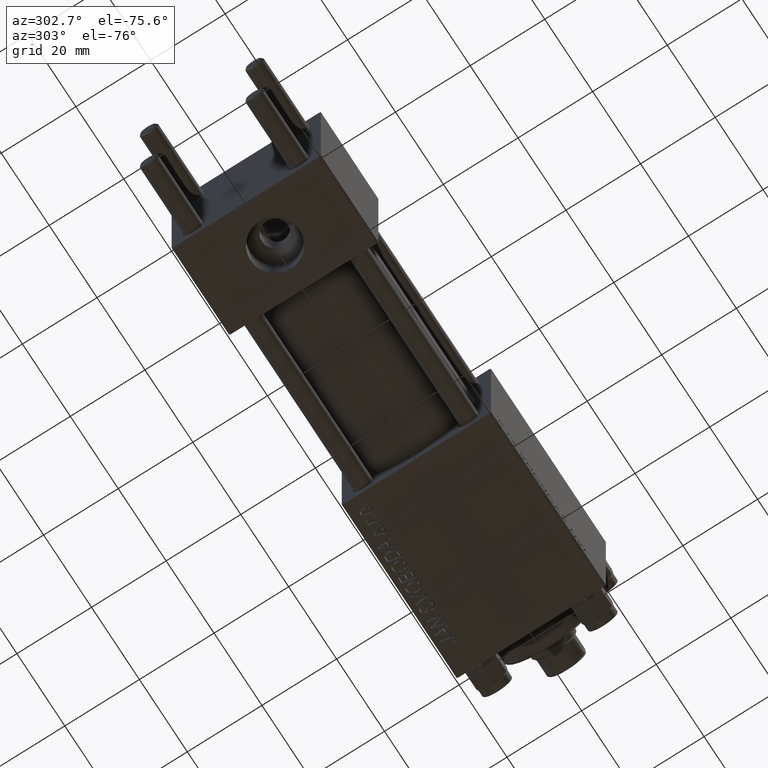
[diagram: clean part render]
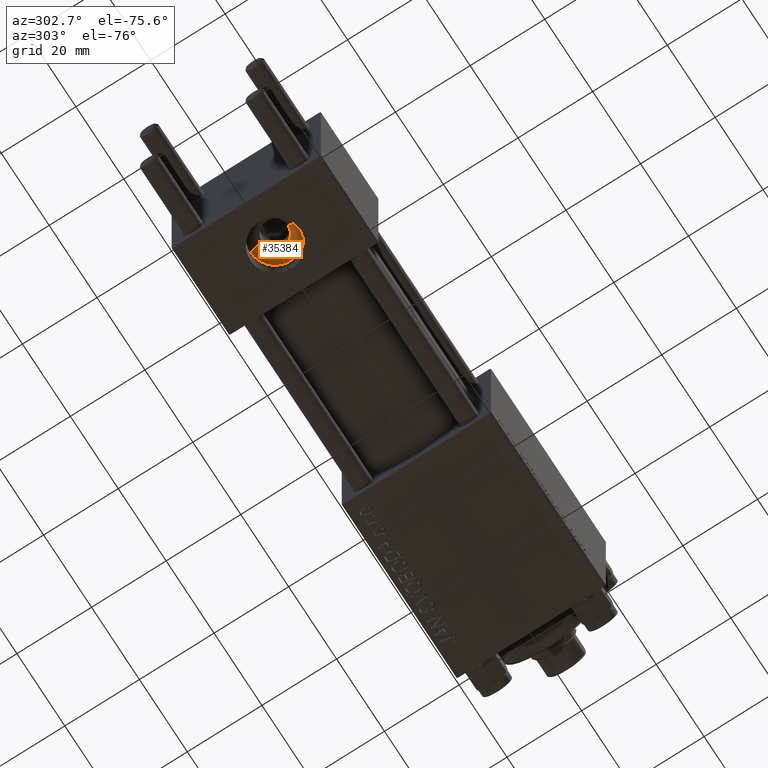
[diagram: same view with one face highlighted and labeled with its STEP entity id]
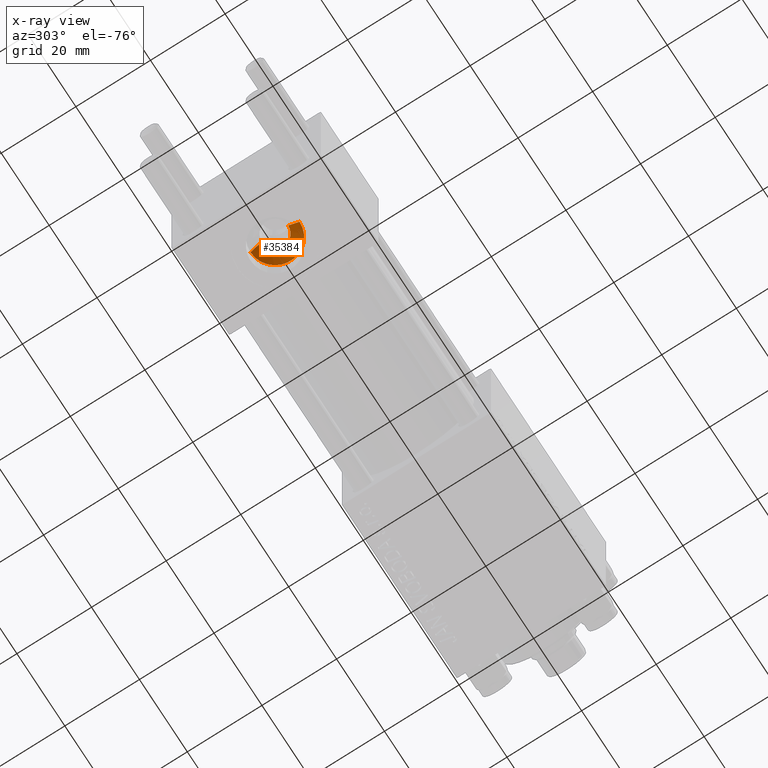
[diagram: x-ray of the same camera — body ghosted, the highlighted face saturated]
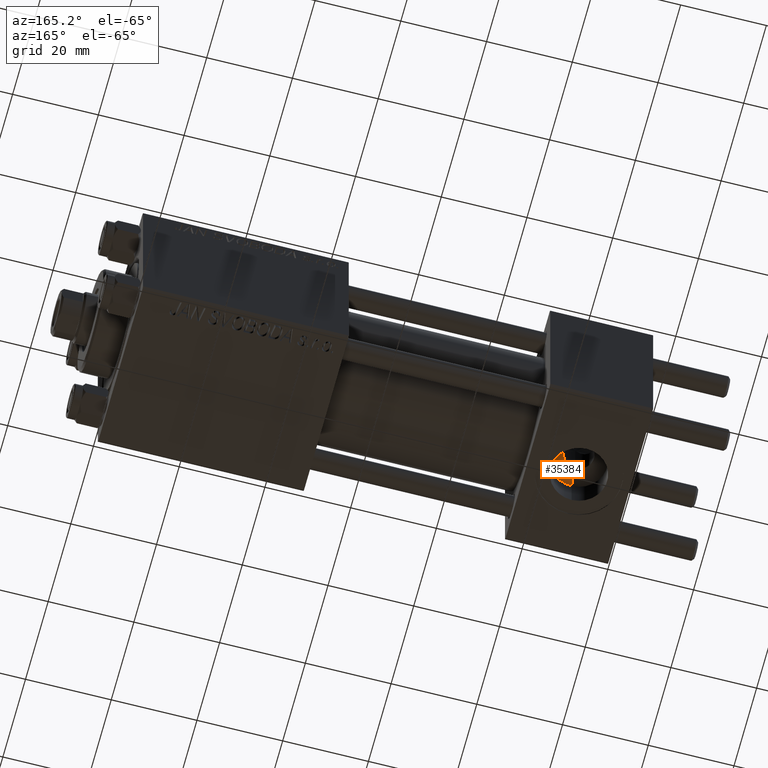
[diagram: same view with one face highlighted and labeled with its STEP entity id]
A machine part, auxiliary view. The second image highlights one B-rep face of the part: STEP entity #35384.
The next image is the same camera in x-ray: the body ghosted, the highlighted face saturated — about 0% of this face is hidden behind the body in this view.
A second angle (auxiliary view) of the same face is appended — the face is thin or edge-on in the first view.
In plain terms, the highlighted conical surface has half-angle 45 deg.
Its self-contained STEP definition (entity closure, byte-faithful):
#2485 = VERTEX_POINT ( 'NONE', #43012 ) ;
#3808 = EDGE_CURVE ( 'NONE', #40965, #39024, #47507, .T. ) ;
#6726 = AXIS2_PLACEMENT_3D ( 'NONE', #10149, #47048, #25523 ) ;
#7858 = FACE_OUTER_BOUND ( 'NONE', #16879, .T. ) ;
#8706 = CARTESIAN_POINT ( 'NONE',  ( 12.00000000000000000, 6.579999999999996518, -12.34000000000000874 ) ) ;
#9246 = CARTESIAN_POINT ( 'NONE',  ( 12.00000000000000000, 3.499999999999996891, -9.260000000000006892 ) ) ;
#9641 = VECTOR ( 'NONE', #33293, 1000.000000000000000 ) ;
#10149 = CARTESIAN_POINT ( 'NONE',  ( 12.00000000000000000, -3.610224928332204888E-15, -12.34000000000000696 ) ) ;
#12011 = DIRECTION ( 'NONE',  ( 0.000000000000000000, -1.734723475976807587E-16, -1.000000000000000000 ) ) ;
#12403 = ORIENTED_EDGE ( 'NONE', *, *, #34665, .F. ) ;
#14235 = CIRCLE ( 'NONE', #6726, 6.580000000000000071 ) ;
#15634 = CARTESIAN_POINT ( 'NONE',  ( 12.00000000000000000, -3.440000000000003055, -9.200000000000004619 ) ) ;
#16879 = EDGE_LOOP ( 'NONE', ( #36447, #45206, #48828, #12403 ) ) ;
#17254 = CARTESIAN_POINT ( 'NONE',  ( 12.00000000000000000, -3.500000000000003109, -9.260000000000006892 ) ) ;
#19735 = EDGE_CURVE ( 'NONE', #40965, #40340, #47942, .T. ) ;
#21933 = CONICAL_SURFACE ( 'NONE', #43532, 3.439999999999999947, 0.7853981633974479459 ) ;
#23033 = CARTESIAN_POINT ( 'NONE',  ( 12.00000000000000000, 3.439999999999996838, -9.200000000000004619 ) ) ;
#25523 = DIRECTION ( 'NONE',  ( 0.000000000000000000, 1.000000000000000000, -2.636357866226150465E-16 ) ) ;
#26231 = DIRECTION ( 'NONE',  ( 0.000000000000000000, -1.734723475976807587E-16, -1.000000000000000000 ) ) ;
#27895 = DIRECTION ( 'NONE',  ( 0.000000000000000000, 1.000000000000000000, 0.000000000000000000 ) ) ;
#28458 = VECTOR ( 'NONE', #39166, 1000.000000000000000 ) ;
#31794 = CARTESIAN_POINT ( 'NONE',  ( 12.00000000000000000, -3.065521756875487066E-15, -9.200000000000004619 ) ) ;
#33293 = DIRECTION ( 'NONE',  ( 8.659560562354931626E-17, -0.7071067811865474617, -0.7071067811865476838 ) ) ;
#34665 = EDGE_CURVE ( 'NONE', #2485, #39024, #14235, .T. ) ;
#35384 = ADVANCED_FACE ( 'NONE', ( #7858 ), #21933, .F. ) ;
#36447 = ORIENTED_EDGE ( 'NONE', *, *, #44631, .F. ) ;
#39024 = VERTEX_POINT ( 'NONE', #8706 ) ;
#39166 = DIRECTION ( 'NONE',  ( 0.000000000000000000, 0.7071067811865472397, -0.7071067811865479058 ) ) ;
#40340 = VERTEX_POINT ( 'NONE', #17254 ) ;
#40965 = VERTEX_POINT ( 'NONE', #9246 ) ;
#42116 = DIRECTION ( 'NONE',  ( 0.000000000000000000, 1.000000000000000000, 0.000000000000000000 ) ) ;
#43012 = CARTESIAN_POINT ( 'NONE',  ( 12.00000000000000000, -6.580000000000003624, -12.34000000000000519 ) ) ;
#43532 = AXIS2_PLACEMENT_3D ( 'NONE', #31794, #12011, #27895 ) ;
#44631 = EDGE_CURVE ( 'NONE', #40340, #2485, #51316, .T. ) ;
#45206 = ORIENTED_EDGE ( 'NONE', *, *, #19735, .F. ) ;
#46554 = CARTESIAN_POINT ( 'NONE',  ( 12.00000000000000000, -3.075930097731347908E-15, -9.260000000000006892 ) ) ;
#47048 = DIRECTION ( 'NONE',  ( -0.000000000000000000, 1.734723475976807587E-16, 1.000000000000000000 ) ) ;
#47507 = LINE ( 'NONE', #23033, #28458 ) ;
#47942 = CIRCLE ( 'NONE', #51260, 3.500000000000000000 ) ;
#48828 = ORIENTED_EDGE ( 'NONE', *, *, #3808, .T. ) ;
#51260 = AXIS2_PLACEMENT_3D ( 'NONE', #46554, #26231, #42116 ) ;
#51316 = LINE ( 'NONE', #15634, #9641 ) ;